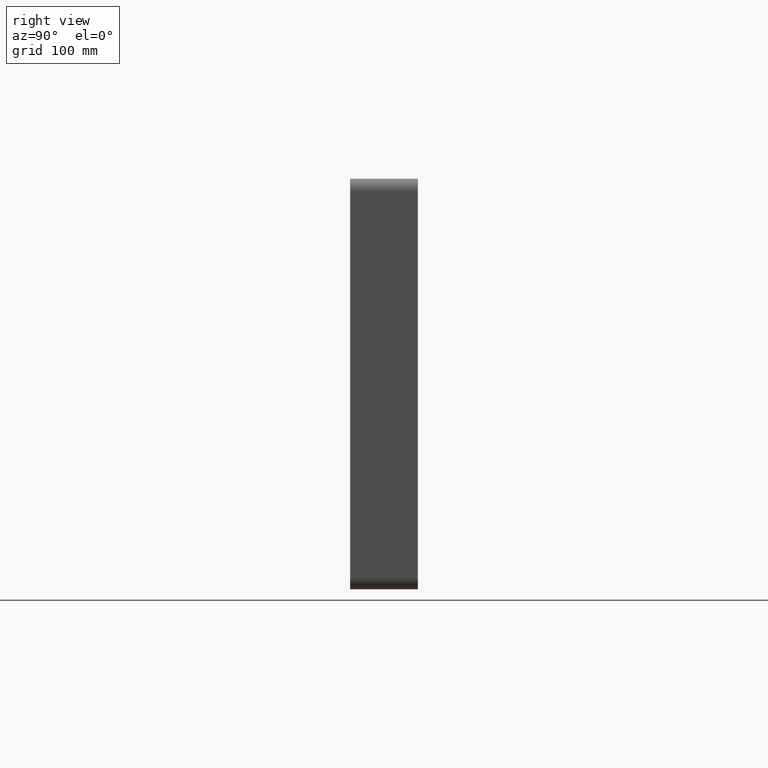
[diagram: clean part render]
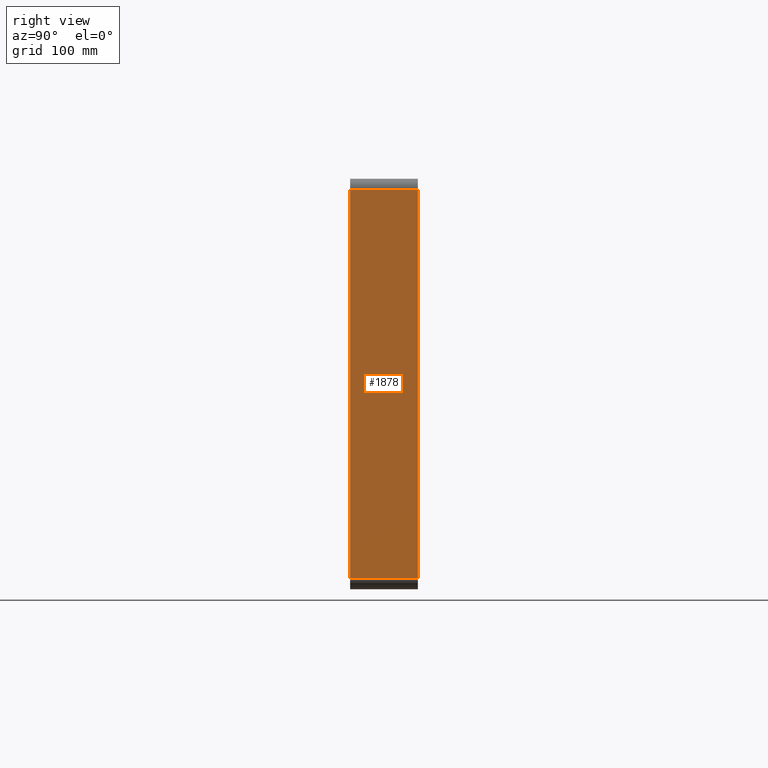
[diagram: same view with one face highlighted and labeled with its STEP entity id]
A machine part, right view. The second image highlights one B-rep face of the part: STEP entity #1878.
In plain terms, the highlighted planar face has unit normal (1, 0, 0).
Its self-contained STEP definition (entity closure, byte-faithful):
#705=CARTESIAN_POINT('',(266.0,57.0,-171.50000000000003));
#706=VERTEX_POINT('',#705);
#756=CARTESIAN_POINT('',(266.0,57.0,171.50000000000003));
#757=VERTEX_POINT('',#756);
#765=CARTESIAN_POINT('',(266.0,57.0,171.50000000000003));
#766=DIRECTION('',(0.0,0.0,-1.0));
#767=VECTOR('',#766,343.00000000000006);
#768=LINE('',#765,#767);
#769=EDGE_CURVE('',#757,#706,#768,.T.);
#1330=CARTESIAN_POINT('',(266.0,-3.0,-171.50000000000003));
#1331=VERTEX_POINT('',#1330);
#1341=CARTESIAN_POINT('',(266.0,-3.0,171.50000000000003));
#1342=VERTEX_POINT('',#1341);
#1343=CARTESIAN_POINT('',(266.0,-3.0,-171.50000000000003));
#1344=DIRECTION('',(0.0,0.0,1.0));
#1345=VECTOR('',#1344,343.00000000000006);
#1346=LINE('',#1343,#1345);
#1347=EDGE_CURVE('',#1331,#1342,#1346,.T.);
#1846=CARTESIAN_POINT('',(266.0,57.0,-171.50000000000003));
#1847=DIRECTION('',(0.0,-1.0,0.0));
#1848=VECTOR('',#1847,60.0);
#1849=LINE('',#1846,#1848);
#1850=EDGE_CURVE('',#706,#1331,#1849,.T.);
#1862=CARTESIAN_POINT('',(266.0,0.0,181.50000000000003));
#1863=DIRECTION('',(1.0,0.0,0.0));
#1864=DIRECTION('',(0.0,0.0,-1.0));
#1865=AXIS2_PLACEMENT_3D('',#1862,#1863,#1864);
#1866=PLANE('',#1865);
#1867=ORIENTED_EDGE('',*,*,#1850,.F.);
#1868=ORIENTED_EDGE('',*,*,#769,.F.);
#1869=CARTESIAN_POINT('',(266.0,-3.0,171.50000000000003));
#1870=DIRECTION('',(0.0,1.0,0.0));
#1871=VECTOR('',#1870,60.0);
#1872=LINE('',#1869,#1871);
#1873=EDGE_CURVE('',#1342,#757,#1872,.T.);
#1874=ORIENTED_EDGE('',*,*,#1873,.F.);
#1875=ORIENTED_EDGE('',*,*,#1347,.F.);
#1876=EDGE_LOOP('',(#1867,#1868,#1874,#1875));
#1877=FACE_OUTER_BOUND('',#1876,.T.);
#1878=ADVANCED_FACE('',(#1877),#1866,.T.);